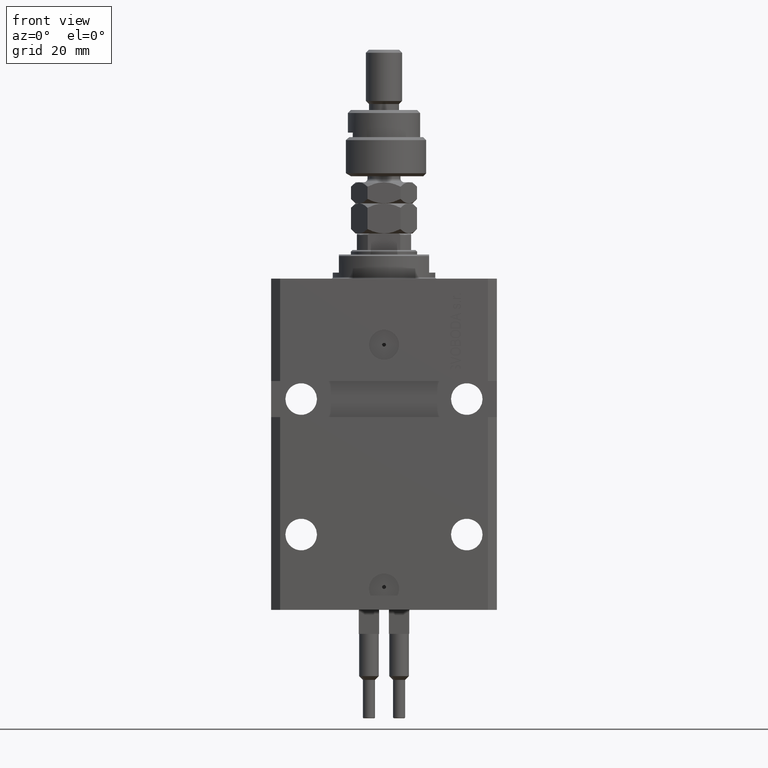
[diagram: clean part render]
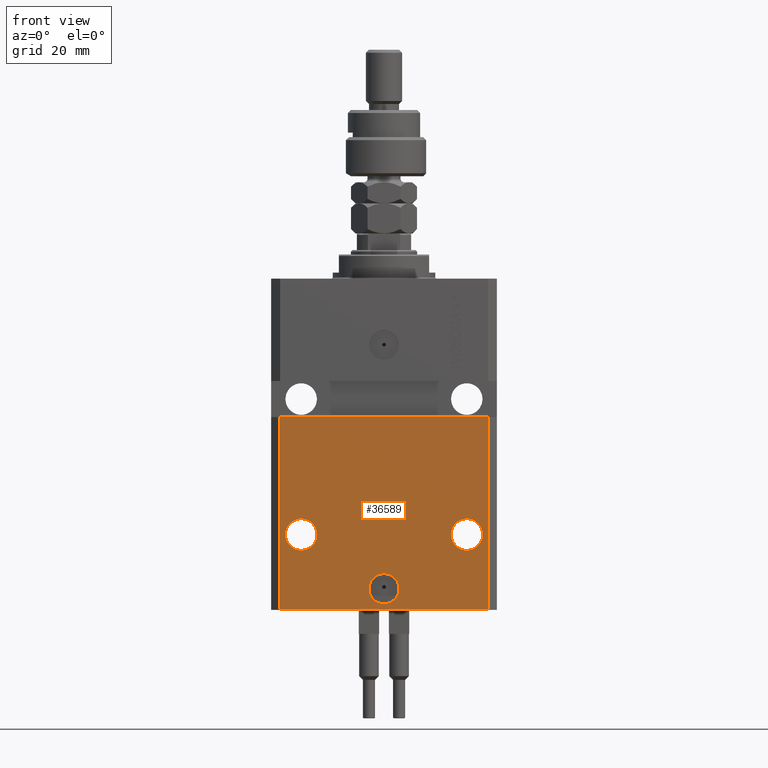
[diagram: same view with one face highlighted and labeled with its STEP entity id]
A machine part, front view. The second image highlights one B-rep face of the part: STEP entity #36589.
In plain terms, the highlighted planar face has unit normal (0, -1, 0).
Its self-contained STEP definition (entity closure, byte-faithful):
#302 = ORIENTED_EDGE ( 'NONE', *, *, #47797, .F. ) ;
#468 = VECTOR ( 'NONE', #3946, 1000.000000000000000 ) ;
#1231 = LINE ( 'NONE', #48398, #14314 ) ;
#2352 = EDGE_CURVE ( 'NONE', #3829, #30331, #1231, .T. ) ;
#2698 = EDGE_LOOP ( 'NONE', ( #302, #19302, #3993, #48847 ) ) ;
#3152 = VERTEX_POINT ( 'NONE', #22610 ) ;
#3829 = VERTEX_POINT ( 'NONE', #44926 ) ;
#3946 = DIRECTION ( 'NONE',  ( 0.000000000000000000, 0.000000000000000000, 1.000000000000000000 ) ) ;
#3993 = ORIENTED_EDGE ( 'NONE', *, *, #28569, .T. ) ;
#4243 = DIRECTION ( 'NONE',  ( 1.000000000000000000, 9.251858538542972814E-17, -9.251858538542972814E-17 ) ) ;
#4373 = DIRECTION ( 'NONE',  ( -1.000000000000000000, 0.000000000000000000, 0.000000000000000000 ) ) ;
#4493 = AXIS2_PLACEMENT_3D ( 'NONE', #47433, #23217, #12125 ) ;
#5621 = VECTOR ( 'NONE', #4243, 1000.000000000000000 ) ;
#5626 = ORIENTED_EDGE ( 'NONE', *, *, #34961, .F. ) ;
#6236 = CARTESIAN_POINT ( 'NONE',  ( 0.000000000000000000, -27.49999999999999645, -103.0000000000000000 ) ) ;
#6371 = CARTESIAN_POINT ( 'NONE',  ( -34.49999999999998579, -27.49999999999999645, -110.0000000000000000 ) ) ;
#6662 = ORIENTED_EDGE ( 'NONE', *, *, #21223, .F. ) ;
#7501 = FACE_OUTER_BOUND ( 'NONE', #2698, .T. ) ;
#8401 = EDGE_CURVE ( 'NONE', #47210, #25226, #26018, .T. ) ;
#8640 = ORIENTED_EDGE ( 'NONE', *, *, #15517, .F. ) ;
#9160 = CIRCLE ( 'NONE', #36317, 5.000000000000006217 ) ;
#10210 = EDGE_CURVE ( 'NONE', #23150, #43921, #38455, .T. ) ;
#10641 = AXIS2_PLACEMENT_3D ( 'NONE', #43560, #28324, #4373 ) ;
#12125 = DIRECTION ( 'NONE',  ( 0.000000000000000000, -0.000000000000000000, -1.000000000000000000 ) ) ;
#12168 = LINE ( 'NONE', #46974, #468 ) ;
#13700 = AXIS2_PLACEMENT_3D ( 'NONE', #6236, #45672, #41812 ) ;
#13711 = DIRECTION ( 'NONE',  ( 1.000000000000000000, 0.000000000000000000, 0.000000000000000000 ) ) ;
#14314 = VECTOR ( 'NONE', #32676, 1000.000000000000000 ) ;
#14445 = CARTESIAN_POINT ( 'NONE',  ( -5.000000000000006217, -27.49999999999999645, -103.0000000000000000 ) ) ;
#14938 = EDGE_CURVE ( 'NONE', #39015, #3152, #22999, .T. ) ;
#15001 = EDGE_LOOP ( 'NONE', ( #6662, #45795 ) ) ;
#15517 = EDGE_CURVE ( 'NONE', #43921, #23150, #19717, .T. ) ;
#15757 = ORIENTED_EDGE ( 'NONE', *, *, #14938, .F. ) ;
#16085 = LINE ( 'NONE', #36191, #5621 ) ;
#16140 = CARTESIAN_POINT ( 'NONE',  ( -27.50000000000001421, -27.50000000000000000, -84.99999999999998579 ) ) ;
#16439 = AXIS2_PLACEMENT_3D ( 'NONE', #26180, #18455, #37543 ) ;
#17278 = CARTESIAN_POINT ( 'NONE',  ( 27.50000000000001421, -27.49999999999999289, -84.99999999999998579 ) ) ;
#17564 = LINE ( 'NONE', #33296, #24184 ) ;
#18402 = AXIS2_PLACEMENT_3D ( 'NONE', #16140, #27992, #27483 ) ;
#18455 = DIRECTION ( 'NONE',  ( 1.176083712526788232E-16, -1.000000000000000000, 0.000000000000000000 ) ) ;
#18695 = DIRECTION ( 'NONE',  ( 1.176083712526788232E-16, -1.000000000000000000, 0.000000000000000000 ) ) ;
#19302 = ORIENTED_EDGE ( 'NONE', *, *, #39024, .F. ) ;
#19500 = AXIS2_PLACEMENT_3D ( 'NONE', #17278, #25009, #36630 ) ;
#19717 = CIRCLE ( 'NONE', #16439, 5.249999999999994671 ) ;
#20106 = FACE_BOUND ( 'NONE', #15001, .T. ) ;
#21223 = EDGE_CURVE ( 'NONE', #25226, #47210, #9160, .T. ) ;
#21347 = EDGE_LOOP ( 'NONE', ( #5626, #15757 ) ) ;
#21363 = VERTEX_POINT ( 'NONE', #6371 ) ;
#22610 = CARTESIAN_POINT ( 'NONE',  ( -22.25000000000002132, -27.50000000000000000, -84.99999999999998579 ) ) ;
#22999 = CIRCLE ( 'NONE', #10641, 5.249999999999994671 ) ;
#23150 = VERTEX_POINT ( 'NONE', #23175 ) ;
#23175 = CARTESIAN_POINT ( 'NONE',  ( 22.25000000000002132, -27.49999999999999289, -84.99999999999998579 ) ) ;
#23217 = DIRECTION ( 'NONE',  ( 0.000000000000000000, -1.000000000000000000, 0.000000000000000000 ) ) ;
#23318 = CARTESIAN_POINT ( 'NONE',  ( 32.75000000000000711, -27.49999999999999289, -84.99999999999998579 ) ) ;
#24184 = VECTOR ( 'NONE', #13711, 1000.000000000000000 ) ;
#24221 = PLANE ( 'NONE',  #4493 ) ;
#25009 = DIRECTION ( 'NONE',  ( 1.176083712526788232E-16, -1.000000000000000000, 0.000000000000000000 ) ) ;
#25226 = VERTEX_POINT ( 'NONE', #43446 ) ;
#26018 = CIRCLE ( 'NONE', #13700, 5.000000000000006217 ) ;
#26180 = CARTESIAN_POINT ( 'NONE',  ( 27.50000000000001421, -27.49999999999999289, -84.99999999999998579 ) ) ;
#26420 = DIRECTION ( 'NONE',  ( 1.000000000000000000, 0.000000000000000000, 0.000000000000000000 ) ) ;
#26522 = VERTEX_POINT ( 'NONE', #34081 ) ;
#27483 = DIRECTION ( 'NONE',  ( -1.000000000000000000, 0.000000000000000000, 0.000000000000000000 ) ) ;
#27839 = FACE_BOUND ( 'NONE', #47863, .T. ) ;
#27992 = DIRECTION ( 'NONE',  ( 1.176083712526788232E-16, -1.000000000000000000, 0.000000000000000000 ) ) ;
#28324 = DIRECTION ( 'NONE',  ( 1.176083712526788232E-16, -1.000000000000000000, 0.000000000000000000 ) ) ;
#28569 = EDGE_CURVE ( 'NONE', #21363, #3829, #17564, .T. ) ;
#30331 = VERTEX_POINT ( 'NONE', #31728 ) ;
#31728 = CARTESIAN_POINT ( 'NONE',  ( 34.49999999999999289, -27.49999999999999289, -46.00000000000000711 ) ) ;
#32676 = DIRECTION ( 'NONE',  ( 0.000000000000000000, 0.000000000000000000, 1.000000000000000000 ) ) ;
#33296 = CARTESIAN_POINT ( 'NONE',  ( -34.49999999999998579, -27.49999999999999645, -110.0000000000000000 ) ) ;
#34081 = CARTESIAN_POINT ( 'NONE',  ( -34.49999999999998579, -27.50000000000000000, -46.00000000000000000 ) ) ;
#34961 = EDGE_CURVE ( 'NONE', #3152, #39015, #39804, .T. ) ;
#36191 = CARTESIAN_POINT ( 'NONE',  ( -37.50000000000000000, -27.50000000000000000, -46.00000000000000000 ) ) ;
#36317 = AXIS2_PLACEMENT_3D ( 'NONE', #50150, #18695, #26420 ) ;
#36589 = ADVANCED_FACE ( 'NONE', ( #20106, #27839, #39197, #7501 ), #24221, .T. ) ;
#36630 = DIRECTION ( 'NONE',  ( 1.000000000000000000, 0.000000000000000000, 0.000000000000000000 ) ) ;
#37543 = DIRECTION ( 'NONE',  ( 1.000000000000000000, 0.000000000000000000, 0.000000000000000000 ) ) ;
#38455 = CIRCLE ( 'NONE', #19500, 5.249999999999994671 ) ;
#39015 = VERTEX_POINT ( 'NONE', #47480 ) ;
#39024 = EDGE_CURVE ( 'NONE', #21363, #26522, #12168, .T. ) ;
#39197 = FACE_BOUND ( 'NONE', #21347, .T. ) ;
#39804 = CIRCLE ( 'NONE', #18402, 5.249999999999994671 ) ;
#41812 = DIRECTION ( 'NONE',  ( 1.000000000000000000, 0.000000000000000000, 0.000000000000000000 ) ) ;
#43446 = CARTESIAN_POINT ( 'NONE',  ( 5.000000000000006217, -27.49999999999999645, -103.0000000000000000 ) ) ;
#43560 = CARTESIAN_POINT ( 'NONE',  ( -27.50000000000001421, -27.50000000000000000, -84.99999999999998579 ) ) ;
#43921 = VERTEX_POINT ( 'NONE', #23318 ) ;
#44926 = CARTESIAN_POINT ( 'NONE',  ( 34.49999999999999289, -27.49999999999999645, -110.0000000000000000 ) ) ;
#45672 = DIRECTION ( 'NONE',  ( 1.176083712526788232E-16, -1.000000000000000000, 0.000000000000000000 ) ) ;
#45795 = ORIENTED_EDGE ( 'NONE', *, *, #8401, .F. ) ;
#46633 = ORIENTED_EDGE ( 'NONE', *, *, #10210, .F. ) ;
#46974 = CARTESIAN_POINT ( 'NONE',  ( -34.49999999999998579, -27.49999999999999645, -110.0000000000000000 ) ) ;
#47210 = VERTEX_POINT ( 'NONE', #14445 ) ;
#47433 = CARTESIAN_POINT ( 'NONE',  ( -34.49999999999998579, -27.49999999999999645, -110.0000000000000000 ) ) ;
#47480 = CARTESIAN_POINT ( 'NONE',  ( -32.75000000000000711, -27.50000000000000000, -84.99999999999998579 ) ) ;
#47797 = EDGE_CURVE ( 'NONE', #26522, #30331, #16085, .T. ) ;
#47863 = EDGE_LOOP ( 'NONE', ( #8640, #46633 ) ) ;
#48398 = CARTESIAN_POINT ( 'NONE',  ( 34.49999999999999289, -27.49999999999999645, -110.0000000000000000 ) ) ;
#48847 = ORIENTED_EDGE ( 'NONE', *, *, #2352, .T. ) ;
#50150 = CARTESIAN_POINT ( 'NONE',  ( 0.000000000000000000, -27.49999999999999645, -103.0000000000000000 ) ) ;